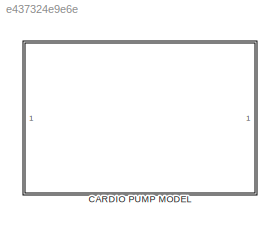
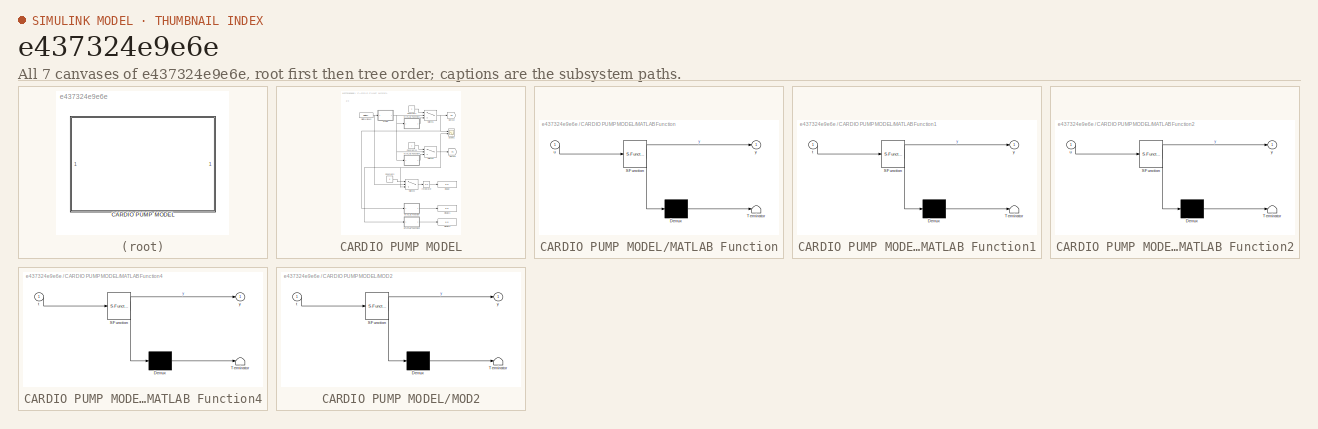
[diagram: thumbnail index - all 7 canvases of the model, root first then tree order]
MODEL slx_e437324e9e6e
KIND model
CONFIG AbsTol = auto
CONFIG EnableMultiTasking = off
CONFIG FixedStep = auto
CONFIG MaxStep = auto
CONFIG MinStep = auto
CONFIG RelTol = 1e-3
CONFIG SampleTimeConstraint = Unconstrained
CONFIG Solver = VariableStepAuto
CONFIG SolverName = VariableStepAuto
CONFIG StartTime = 0.0
CONFIG StopTime = 10.0
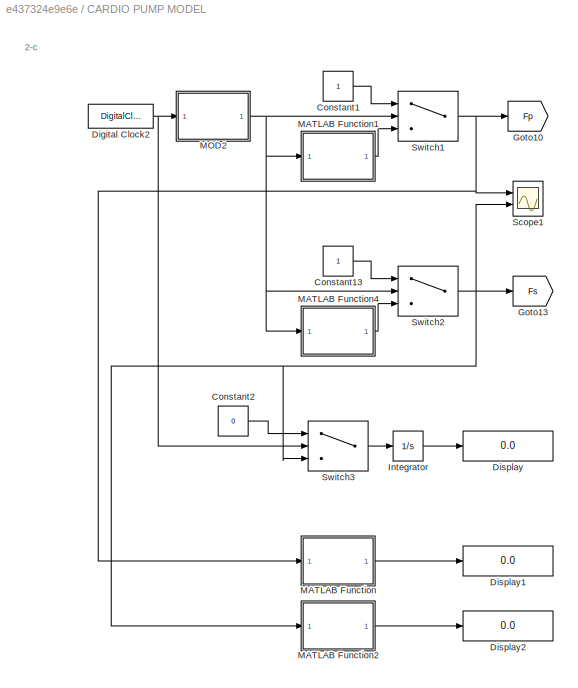
BLOCK [SubSystem] CARDIO PUMP MODEL
  Ports = []
  RequestExecContextInheritance = off
BLOCK [Constant] CARDIO PUMP MODEL/Constant1
BLOCK [Constant] CARDIO PUMP MODEL/Constant13
BLOCK [Constant] CARDIO PUMP MODEL/Constant2
  Value = 0
BLOCK [DigitalClock] CARDIO PUMP MODEL/Digital Clock2
  SampleTime = 0.001
BLOCK [Display] CARDIO PUMP MODEL/Display
  Decimation = 1
  Ports = [1]
BLOCK [Display] CARDIO PUMP MODEL/Display1
  Decimation = 1
  Ports = [1]
BLOCK [Display] CARDIO PUMP MODEL/Display2
  Decimation = 1
  Ports = [1]
BLOCK [Goto] CARDIO PUMP MODEL/Goto10
  GotoTag = Fp
  TagVisibility = global
BLOCK [Goto] CARDIO PUMP MODEL/Goto13
  GotoTag = Fs
  TagVisibility = global
BLOCK [Integrator] CARDIO PUMP MODEL/Integrator
  Ports = [1, 1]
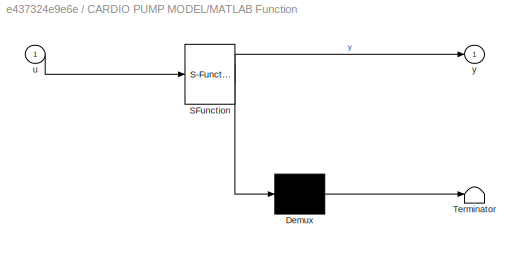
BLOCK [SubSystem] CARDIO PUMP MODEL/MATLAB Function
  ErrorFcn = Stateflow.Translate.translate
  PermitHierarchicalResolution = ExplicitOnly
  Ports = [1, 1]
  RequestExecContextInheritance = off
  SFBlockType = MATLAB Function
  TreatAsAtomicUnit = on
BLOCK [Demux] CARDIO PUMP MODEL/MATLAB Function/ Demux 
  Outputs = 1
  Ports = [1, 1]
BLOCK [S-Function] CARDIO PUMP MODEL/MATLAB Function/ SFunction 
  EnableBusSupport = on
  FunctionName = sf_sfun
  PortCounts = [1 2]
  Ports = [1, 2]
  SFcnIsStateOwnerBlock = off
  SFunctionDeploymentMode = off
  Tag = Stateflow S-Function 4
BLOCK [Terminator] CARDIO PUMP MODEL/MATLAB Function/ Terminator 
BLOCK [Inport] CARDIO PUMP MODEL/MATLAB Function/u
  IconDisplay = Port number
BLOCK [Outport] CARDIO PUMP MODEL/MATLAB Function/y
  IconDisplay = Port number
BLOCK [SubSystem] CARDIO PUMP MODEL/MATLAB Function1
  ErrorFcn = Stateflow.Translate.translate
  PermitHierarchicalResolution = ExplicitOnly
  Ports = [1, 1]
  RequestExecContextInheritance = off
  SFBlockType = MATLAB Function
  TreatAsAtomicUnit = on
BLOCK [Demux] CARDIO PUMP MODEL/MATLAB Function1/ Demux 
  Outputs = 1
  Ports = [1, 1]
BLOCK [S-Function] CARDIO PUMP MODEL/MATLAB Function1/ SFunction 
  EnableBusSupport = on
  FunctionName = sf_sfun
  PortCounts = [1 2]
  Ports = [1, 2]
  SFcnIsStateOwnerBlock = off
  SFunctionDeploymentMode = off
  Tag = Stateflow S-Function 1
BLOCK [Terminator] CARDIO PUMP MODEL/MATLAB Function1/ Terminator 
BLOCK [Inport] CARDIO PUMP MODEL/MATLAB Function1/t
  IconDisplay = Port number
BLOCK [Outport] CARDIO PUMP MODEL/MATLAB Function1/y
  IconDisplay = Port number
BLOCK [SubSystem] CARDIO PUMP MODEL/MATLAB Function2
  ErrorFcn = Stateflow.Translate.translate
  PermitHierarchicalResolution = ExplicitOnly
  Ports = [1, 1]
  RequestExecContextInheritance = off
  SFBlockType = MATLAB Function
  TreatAsAtomicUnit = on
BLOCK [Demux] CARDIO PUMP MODEL/MATLAB Function2/ Demux 
  Outputs = 1
  Ports = [1, 1]
BLOCK [S-Function] CARDIO PUMP MODEL/MATLAB Function2/ SFunction 
  EnableBusSupport = on
  FunctionName = sf_sfun
  PortCounts = [1 2]
  Ports = [1, 2]
  SFcnIsStateOwnerBlock = off
  SFunctionDeploymentMode = off
  Tag = Stateflow S-Function 5
BLOCK [Terminator] CARDIO PUMP MODEL/MATLAB Function2/ Terminator 
BLOCK [Inport] CARDIO PUMP MODEL/MATLAB Function2/u
  IconDisplay = Port number
BLOCK [Outport] CARDIO PUMP MODEL/MATLAB Function2/y
  IconDisplay = Port number
BLOCK [SubSystem] CARDIO PUMP MODEL/MATLAB Function4
  ErrorFcn = Stateflow.Translate.translate
  PermitHierarchicalResolution = ExplicitOnly
  Ports = [1, 1]
  RequestExecContextInheritance = off
  SFBlockType = MATLAB Function
  TreatAsAtomicUnit = on
BLOCK [Demux] CARDIO PUMP MODEL/MATLAB Function4/ Demux 
  Outputs = 1
  Ports = [1, 1]
BLOCK [S-Function] CARDIO PUMP MODEL/MATLAB Function4/ SFunction 
  EnableBusSupport = on
  FunctionName = sf_sfun
  PortCounts = [1 2]
  Ports = [1, 2]
  SFcnIsStateOwnerBlock = off
  SFunctionDeploymentMode = off
  Tag = Stateflow S-Function 2
BLOCK [Terminator] CARDIO PUMP MODEL/MATLAB Function4/ Terminator 
BLOCK [Inport] CARDIO PUMP MODEL/MATLAB Function4/t
  IconDisplay = Port number
BLOCK [Outport] CARDIO PUMP MODEL/MATLAB Function4/y
  IconDisplay = Port number
BLOCK [SubSystem] CARDIO PUMP MODEL/MOD2
  ErrorFcn = Stateflow.Translate.translate
  PermitHierarchicalResolution = ExplicitOnly
  Ports = [1, 1]
  RequestExecContextInheritance = off
  SFBlockType = MATLAB Function
  TreatAsAtomicUnit = on
BLOCK [Demux] CARDIO PUMP MODEL/MOD2/ Demux 
  Outputs = 1
  Ports = [1, 1]
BLOCK [S-Function] CARDIO PUMP MODEL/MOD2/ SFunction 
  EnableBusSupport = on
  FunctionName = sf_sfun
  PortCounts = [1 2]
  Ports = [1, 2]
  SFcnIsStateOwnerBlock = off
  SFunctionDeploymentMode = off
  Tag = Stateflow S-Function 3
BLOCK [Terminator] CARDIO PUMP MODEL/MOD2/ Terminator 
BLOCK [Inport] CARDIO PUMP MODEL/MOD2/t
  IconDisplay = Port number
BLOCK [Outport] CARDIO PUMP MODEL/MOD2/y
  IconDisplay = Port number
BLOCK [Scope] CARDIO PUMP MODEL/Scope1
  Floating = off
  NumInputPorts = 2
  Ports = [2]
  ScopeSpecificationString = Simulink.scopes.TimeScopeBlockCfg('CurrentConfiguration', extmgr.ConfigurationSet(extmgr.Configuration('Core','General UI',true),extmgr.Configuration('Core','Source UI',true),extmgr.Configuration('Sources','WiredSimulink',true,'DataLoggingVariableName','ScopeData1'),extmgr.Configuration('Visuals','Time Domain',true,'SerializedDisplays',{struct('MinYLimReal','-82.75','MaxYLimReal','754.75','YLabelR...<+1467ch>
BLOCK [Switch] CARDIO PUMP MODEL/Switch1
  Criteria = u2 > Threshold
  InputSameDT = off
  SaturateOnIntegerOverflow = off
  Threshold = 0.25
BLOCK [Switch] CARDIO PUMP MODEL/Switch2
  Criteria = u2 > Threshold
  InputSameDT = off
  SaturateOnIntegerOverflow = off
  Threshold = 0.19
BLOCK [Switch] CARDIO PUMP MODEL/Switch3
  Criteria = u2 > Threshold
  InputSameDT = off
  SaturateOnIntegerOverflow = off
  Threshold = 0.19
ANNOTATION CARDIO PUMP MODEL: 2-c
LINE CARDIO PUMP MODEL/Constant13:1 -> CARDIO PUMP MODEL/Switch2:1
LINE CARDIO PUMP MODEL/Constant1:1 -> CARDIO PUMP MODEL/Switch1:1
LINE CARDIO PUMP MODEL/Constant2:1 -> CARDIO PUMP MODEL/Switch3:1
NET CARDIO PUMP MODEL/Digital Clock2:1 -> CARDIO PUMP MODEL/MOD2:1, CARDIO PUMP MODEL/Switch3:2
LINE CARDIO PUMP MODEL/Integrator:1 -> CARDIO PUMP MODEL/Display:1
LINE CARDIO PUMP MODEL/MATLAB Function1:1 -> CARDIO PUMP MODEL/Switch1:3
LINE CARDIO PUMP MODEL/MATLAB Function2:1 -> CARDIO PUMP MODEL/Display2:1
LINE CARDIO PUMP MODEL/MATLAB Function4:1 -> CARDIO PUMP MODEL/Switch2:3
LINE CARDIO PUMP MODEL/MATLAB Function:1 -> CARDIO PUMP MODEL/Display1:1
NET CARDIO PUMP MODEL/MOD2:1 -> CARDIO PUMP MODEL/MATLAB Function1:1, CARDIO PUMP MODEL/MATLAB Function4:1, CARDIO PUMP MODEL/Switch1:2, CARDIO PUMP MODEL/Switch2:2
NET CARDIO PUMP MODEL/Switch1:1 -> CARDIO PUMP MODEL/Goto10:1, CARDIO PUMP MODEL/MATLAB Function:1, CARDIO PUMP MODEL/Scope1:1
NET CARDIO PUMP MODEL/Switch2:1 -> CARDIO PUMP MODEL/Goto13:1, CARDIO PUMP MODEL/MATLAB Function2:1, CARDIO PUMP MODEL/Scope1:2, CARDIO PUMP MODEL/Switch3:3
LINE CARDIO PUMP MODEL/Switch3:1 -> CARDIO PUMP MODEL/Integrator:1
note: NET lines group one-source signal fan-out (src -> all destinations, sorted); 1:1 wires keep LINE
CHART CARDIO PUMP MODEL/MATLAB Function1 states=1 transitions=1
  STATE_LABEL 'eML_blk_kernel()'
  STATE_LABEL 'SCRIPT:\nfunction y = fcn(t)\ny = (abs((sin(pi*t/0.25)))^1.55)*460+1;'
CHART CARDIO PUMP MODEL/MATLAB Function4 states=1 transitions=1
  STATE_LABEL 'eML_blk_kernel()'
  STATE_LABEL 'SCRIPT:\nfunction y = fcn(t)\ny = (abs((sin(pi*t/0.19)))^2)*670+1;'
CHART CARDIO PUMP MODEL/MOD2 states=1 transitions=1
  STATE_LABEL 'eML_blk_kernel()'
  STATE_LABEL 'SCRIPT:\nfunction y = fcn(t)\n    period=mod(t,0.84);\ny = period;\n'
CHART CARDIO PUMP MODEL/MATLAB Function states=1 transitions=1
  STATE_LABEL 'eML_blk_kernel()'
  STATE_LABEL 'SCRIPT:\nfunction y = fcn(u)\n\ny = abs(fft(u,length(u)));\n'
CHART CARDIO PUMP MODEL/MATLAB Function2 states=1 transitions=1
  STATE_LABEL 'eML_blk_kernel()'
  STATE_LABEL 'SCRIPT:\nfunction y = fcn(u)\n\ny = abs(fft(u,length(u)));\n'
